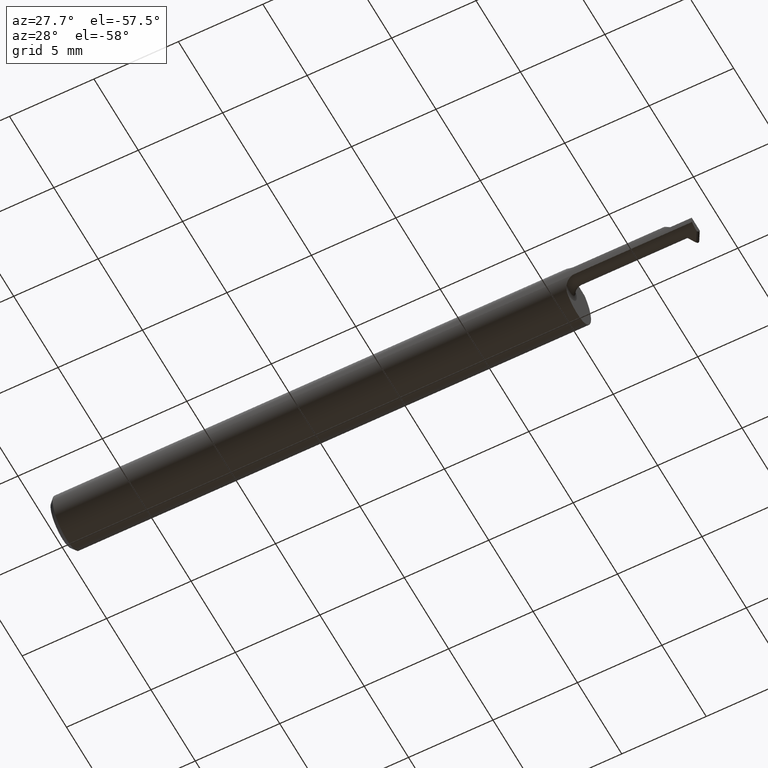
[diagram: clean part render]
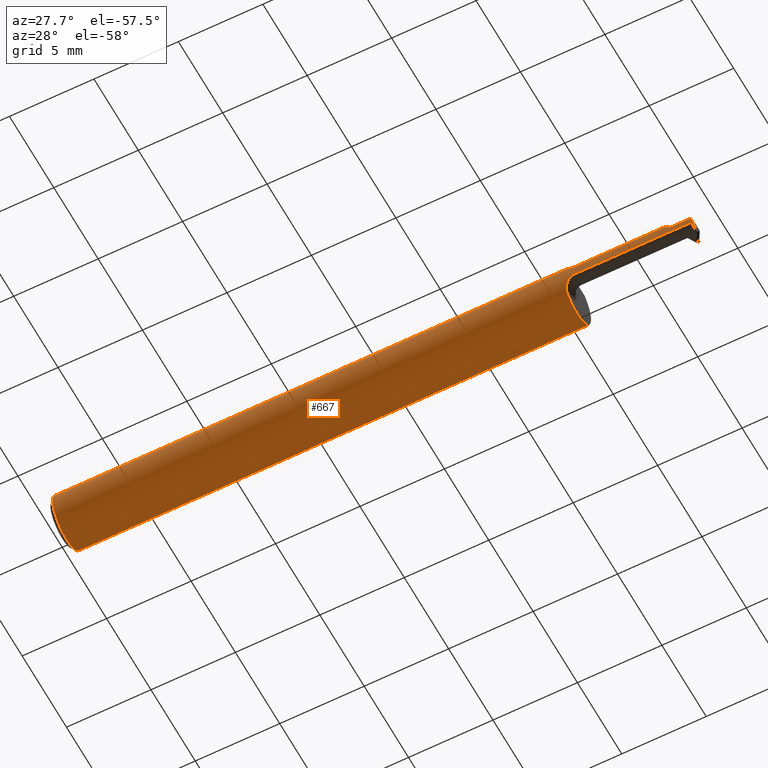
[diagram: same view with one face highlighted and labeled with its STEP entity id]
A machine part, auxiliary view. The second image highlights one B-rep face of the part: STEP entity #667.
In plain terms, the highlighted cylindrical surface (edge-blend (fillet) strip) has radius 1.5837 mm, axis along (-1, -0, -0).
Its self-contained STEP definition (entity closure, byte-faithful):
#2 = ORIENTED_EDGE ( 'NONE', *, *, #334, .T. ) ;
#6 = CARTESIAN_POINT ( 'NONE',  ( 0.000000000000000000, 0.000000000000000000, 0.000000000000000000 ) ) ;
#7 = VERTEX_POINT ( 'NONE', #793 ) ;
#11 = FACE_OUTER_BOUND ( 'NONE', #121, .T. ) ;
#13 = CARTESIAN_POINT ( 'NONE',  ( 1.221292961278814149, -0.06073604143947843731, 0.01409452979925066192 ) ) ;
#18 = CARTESIAN_POINT ( 'NONE',  ( 1.217834430527526601, -0.06037265636804074048, 0.01573558416171080485 ) ) ;
#29 = AXIS2_PLACEMENT_3D ( 'NONE', #241, #682, #107 ) ;
#30 = CARTESIAN_POINT ( 'NONE',  ( 1.500000000000000222, 0.000000000000000000, 0.000000000000000000 ) ) ;
#32 =( BOUNDED_CURVE ( )  B_SPLINE_CURVE ( 3, ( #646, #327, #450, #130 ),
 .UNSPECIFIED., .F., .T. ) 
 B_SPLINE_CURVE_WITH_KNOTS ( ( 4, 4 ),
 ( 4.712388980384689674, 4.940414924607588354 ),
 .UNSPECIFIED. ) 
 CURVE ( )  GEOMETRIC_REPRESENTATION_ITEM ( )  RATIONAL_B_SPLINE_CURVE ( ( 1.000000000000000000, 0.9956717057219215405, 0.9956717057219215405, 1.000000000000000000 ) ) 
 REPRESENTATION_ITEM ( '' )  );
#43 = DIRECTION ( 'NONE',  ( -1.000000000000000000, -0.000000000000000000, -0.000000000000000000 ) ) ;
#44 = VECTOR ( 'NONE', #509, 39.37007874015748143 ) ;
#47 = EDGE_CURVE ( 'NONE', #706, #507, #789, .T. ) ;
#53 = ORIENTED_EDGE ( 'NONE', *, *, #786, .T. ) ;
#58 = CARTESIAN_POINT ( 'NONE',  ( 1.450000000000000178, -0.06235000000000005121, 6.123233995736799470E-18 ) ) ;
#59 = AXIS2_PLACEMENT_3D ( 'NONE', #606, #732, #81 ) ;
#68 = CARTESIAN_POINT ( 'NONE',  ( 1.200000000000000400, -0.04274258451472193188, -0.04539376575039631712 ) ) ;
#69 = ORIENTED_EDGE ( 'NONE', *, *, #428, .F. ) ;
#76 = LINE ( 'NONE', #250, #44 ) ;
#79 = CARTESIAN_POINT ( 'NONE',  ( 1.200908254586501078, -0.05074957136629033166, 0.03693611459846564415 ) ) ;
#80 = EDGE_CURVE ( 'NONE', #776, #817, #675, .T. ) ;
#81 = DIRECTION ( 'NONE',  ( 0.000000000000000000, 0.000000000000000000, -1.000000000000000000 ) ) ;
#91 = CARTESIAN_POINT ( 'NONE',  ( 1.211997782843084126, -0.05910352463981074361, -0.01998087697867563864 ) ) ;
#96 = CARTESIAN_POINT ( 'NONE',  ( 1.200911592396175731, -0.05077305230828149663, -0.03691063460847186090 ) ) ;
#98 = CARTESIAN_POINT ( 'NONE',  ( 0.009999999999999887451, 0.03386738844375224849, 0.05234999999999997294 ) ) ;
#103 = EDGE_CURVE ( 'NONE', #695, #757, #569, .T. ) ;
#104 = DIRECTION ( 'NONE',  ( 0.000000000000000000, 0.000000000000000000, 1.000000000000000000 ) ) ;
#107 = DIRECTION ( 'NONE',  ( 0.000000000000000000, 0.000000000000000000, -1.000000000000000000 ) ) ;
#116 = CARTESIAN_POINT ( 'NONE',  ( 1.200000000000000400, -0.04274258451472193188, 0.04539376575039631712 ) ) ;
#121 = EDGE_LOOP ( 'NONE', ( #464, #53, #559, #2, #471, #69, #794, #639, #733, #668, #688, #475, #340, #427, #754 ) ) ;
#127 = CARTESIAN_POINT ( 'NONE',  ( 0.009999999999999887451, 0.000000000000000000, -0.06235000000000000264 ) ) ;
#130 = CARTESIAN_POINT ( 'NONE',  ( 1.435905470200741219, -0.06073604143947651524, 0.01409452979925868675 ) ) ;
#132 = VERTEX_POINT ( 'NONE', #374 ) ;
#135 = DIRECTION ( 'NONE',  ( -1.000000000000000000, -0.000000000000000000, -0.000000000000000000 ) ) ;
#143 = CARTESIAN_POINT ( 'NONE',  ( 1.200000000000000400, -0.04274258451472193188, -0.04539376575039631712 ) ) ;
#144 = VERTEX_POINT ( 'NONE', #693 ) ;
#147 = CARTESIAN_POINT ( 'NONE',  ( 1.211982382220401888, -0.05909843708157583309, 0.01999602411377916777 ) ) ;
#158 = CARTESIAN_POINT ( 'NONE',  ( 1.200000000000000178, -0.04381837713272508650, -0.04438080381310843120 ) ) ;
#163 = EDGE_CURVE ( 'NONE', #372, #757, #810, .T. ) ;
#168 = CARTESIAN_POINT ( 'NONE',  ( 1.200211781816272305, -0.04585000000000021697, -0.04225281055740977287 ) ) ;
#195 = AXIS2_PLACEMENT_3D ( 'NONE', #30, #43, #104 ) ;
#213 = DIRECTION ( 'NONE',  ( -1.000000000000000000, -0.000000000000000000, -0.000000000000000000 ) ) ;
#221 = DIRECTION ( 'NONE',  ( -1.000000000000000000, -0.000000000000000000, -0.000000000000000000 ) ) ;
#230 = CARTESIAN_POINT ( 'NONE',  ( 1.217858627438156427, -0.06037617897742812711, -0.01572192996331089887 ) ) ;
#231 = DIRECTION ( 'NONE',  ( 1.000000000000000000, 0.000000000000000000, 0.000000000000000000 ) ) ;
#234 = LINE ( 'NONE', #612, #393 ) ;
#240 = B_SPLINE_CURVE_WITH_KNOTS ( 'NONE', 3,
 ( #168, #419, #158, #143 ),
 .UNSPECIFIED., .F., .F.,
 ( 4, 4 ),
 ( 0.001112411154576747234, 0.001224254429530157243 ),
 .UNSPECIFIED. ) ;
#241 = CARTESIAN_POINT ( 'NONE',  ( 1.200000000000000400, 0.000000000000000000, 0.000000000000000000 ) ) ;
#250 = CARTESIAN_POINT ( 'NONE',  ( 0.000000000000000000, -0.03386738844375224849, 0.05234999999999997294 ) ) ;
#306 = CARTESIAN_POINT ( 'NONE',  ( 0.000000000000000000, 0.03386738844375224849, 0.05234999999999997294 ) ) ;
#326 = AXIS2_PLACEMENT_3D ( 'NONE', #690, #231, #684 ) ;
#327 = CARTESIAN_POINT ( 'NONE',  ( 1.445250564478592015, -0.06235000000000000958, 0.004749435521408015490 ) ) ;
#334 = EDGE_CURVE ( 'NONE', #343, #144, #32, .T. ) ;
#338 = CARTESIAN_POINT ( 'NONE',  ( 1.203374710604616427, -0.05454397503010508658, 0.03079799606398875636 ) ) ;
#340 = ORIENTED_EDGE ( 'NONE', *, *, #548, .F. ) ;
#343 = VERTEX_POINT ( 'NONE', #58 ) ;
#351 = CARTESIAN_POINT ( 'NONE',  ( 1.200211781816272305, -0.04585000000000021697, -0.04225281055740977287 ) ) ;
#352 = EDGE_CURVE ( 'NONE', #565, #478, #76, .T. ) ;
#359 = CARTESIAN_POINT ( 'NONE',  ( 1.203333494524814640, -0.05451804717303847941, -0.03085487378060305930 ) ) ;
#363 = CARTESIAN_POINT ( 'NONE',  ( 1.200000000000000400, -0.04274258451472193188, 0.04539376575039631712 ) ) ;
#372 = VERTEX_POINT ( 'NONE', #470 ) ;
#374 = CARTESIAN_POINT ( 'NONE',  ( 1.225000000000000089, -0.06073604143947652217, 0.01409452979925869022 ) ) ;
#379 = DIRECTION ( 'NONE',  ( 0.000000000000000000, 0.000000000000000000, -1.000000000000000000 ) ) ;
#382 = CIRCLE ( 'NONE', #539, 0.06235000000000000264 ) ;
#393 = VECTOR ( 'NONE', #730, 39.37007874015748143 ) ;
#413 = B_SPLINE_CURVE_WITH_KNOTS ( 'NONE', 3,
 ( #719, #79, #338, #595, #147, #18, #13, #598 ),
 .UNSPECIFIED., .F., .F.,
 ( 4, 2, 2, 4 ),
 ( 0.0001160581919393091247, 0.0006692384458867309174, 0.0009458285728604417120, 0.001222418699834152507 ),
 .UNSPECIFIED. ) ;
#419 = CARTESIAN_POINT ( 'NONE',  ( 1.200071037177339983, -0.04485988461807983302, -0.04332721932837746426 ) ) ;
#421 = CARTESIAN_POINT ( 'NONE',  ( 1.225000000000000089, -0.06073604143947652217, -0.01409452979925869022 ) ) ;
#427 = ORIENTED_EDGE ( 'NONE', *, *, #824, .F. ) ;
#428 = EDGE_CURVE ( 'NONE', #817, #132, #413, .T. ) ;
#430 = CARTESIAN_POINT ( 'NONE',  ( 1.200000000000000178, -0.04382395356689964411, 0.04437555306545493822 ) ) ;
#431 = CARTESIAN_POINT ( 'NONE',  ( 1.200211781816272305, -0.04585000000000021697, -0.04225281055740977287 ) ) ;
#450 = CARTESIAN_POINT ( 'NONE',  ( 1.440531964389071051, -0.06180967512810751907, 0.009468035610928925150 ) ) ;
#456 = B_SPLINE_CURVE_WITH_KNOTS ( 'NONE', 3,
 ( #809, #482, #230, #91, #741, #359, #96, #351 ),
 .UNSPECIFIED., .F., .F.,
 ( 4, 2, 2, 4 ),
 ( 1.967541529472493972E-07, 0.0002782503542588971881, 0.0005563039543648472035, 0.001112411154576747234 ),
 .UNSPECIFIED. ) ;
#464 = ORIENTED_EDGE ( 'NONE', *, *, #47, .F. ) ;
#470 = CARTESIAN_POINT ( 'NONE',  ( 1.200000000000000400, 0.03386738844375224849, 0.05234999999999997294 ) ) ;
#471 = ORIENTED_EDGE ( 'NONE', *, *, #771, .F. ) ;
#475 = ORIENTED_EDGE ( 'NONE', *, *, #163, .F. ) ;
#478 = VERTEX_POINT ( 'NONE', #491 ) ;
#482 = CARTESIAN_POINT ( 'NONE',  ( 1.221291015573046979, -0.06073604143947652911, -0.01409452979925869716 ) ) ;
#486 = VECTOR ( 'NONE', #213, 39.37007874015748143 ) ;
#491 = CARTESIAN_POINT ( 'NONE',  ( 1.200000000000000400, -0.03386738844375225543, 0.05234999999999997294 ) ) ;
#492 = VERTEX_POINT ( 'NONE', #431 ) ;
#499 = DIRECTION ( 'NONE',  ( -1.000000000000000000, -0.000000000000000000, -0.000000000000000000 ) ) ;
#507 = VERTEX_POINT ( 'NONE', #421 ) ;
#509 = DIRECTION ( 'NONE',  ( 1.000000000000000000, 0.000000000000000000, 0.000000000000000000 ) ) ;
#514 = DIRECTION ( 'NONE',  ( 0.000000000000000000, 0.000000000000000000, 1.000000000000000000 ) ) ;
#516 = CIRCLE ( 'NONE', #195, 0.06235000000000000264 ) ;
#519 = CYLINDRICAL_SURFACE ( 'NONE', #736, 0.06235000000000000264 ) ;
#539 = AXIS2_PLACEMENT_3D ( 'NONE', #580, #638, #379 ) ;
#544 = CARTESIAN_POINT ( 'NONE',  ( 1.200211781816276302, -0.04585000000000002962, 0.04225281055740549851 ) ) ;
#548 = EDGE_CURVE ( 'NONE', #720, #372, #554, .T. ) ;
#554 = CIRCLE ( 'NONE', #29, 0.06235000000000000264 ) ;
#559 = ORIENTED_EDGE ( 'NONE', *, *, #758, .T. ) ;
#565 = VERTEX_POINT ( 'NONE', #756 ) ;
#569 = CIRCLE ( 'NONE', #326, 0.06235000000000000264 ) ;
#580 = CARTESIAN_POINT ( 'NONE',  ( 1.200000000000000400, 0.000000000000000000, 0.000000000000000000 ) ) ;
#595 = CARTESIAN_POINT ( 'NONE',  ( 1.209555563180715776, -0.05819961569811519381, 0.02256849687092988069 ) ) ;
#598 = CARTESIAN_POINT ( 'NONE',  ( 1.225000000000000089, -0.06073604143947652217, 0.01409452979925869022 ) ) ;
#600 = CARTESIAN_POINT ( 'NONE',  ( 1.348475710773594072, -0.06073604143947650830, -0.01409452979925867808 ) ) ;
#604 = VECTOR ( 'NONE', #221, 39.37007874015748143 ) ;
#606 = CARTESIAN_POINT ( 'NONE',  ( 0.009999999999999887451, 0.000000000000000000, 0.000000000000000000 ) ) ;
#612 = CARTESIAN_POINT ( 'NONE',  ( 1.348475710773594072, -0.06073604143947650830, 0.01409452979925867808 ) ) ;
#624 = CARTESIAN_POINT ( 'NONE',  ( 1.200211781816276302, -0.04585000000000002962, 0.04225281055740549851 ) ) ;
#633 = CARTESIAN_POINT ( 'NONE',  ( 1.500000000000000222, -0.06073604143947641809, -0.01409452979925866940 ) ) ;
#638 = DIRECTION ( 'NONE',  ( 1.000000000000000000, 0.000000000000000000, 0.000000000000000000 ) ) ;
#639 = ORIENTED_EDGE ( 'NONE', *, *, #702, .F. ) ;
#646 = CARTESIAN_POINT ( 'NONE',  ( 1.450000000000000178, -0.06235000000000005121, 6.123233995736799470E-18 ) ) ;
#661 = VECTOR ( 'NONE', #499, 39.37007874015748143 ) ;
#667 = ADVANCED_FACE ( 'NONE', ( #11 ), #519, .T. ) ;
#668 = ORIENTED_EDGE ( 'NONE', *, *, #790, .T. ) ;
#675 = B_SPLINE_CURVE_WITH_KNOTS ( 'NONE', 3,
 ( #116, #430, #750, #624 ),
 .UNSPECIFIED., .F., .F.,
 ( 4, 4 ),
 ( 4.183662842068164932E-06, 0.0001160581919393091247 ),
 .UNSPECIFIED. ) ;
#676 = LINE ( 'NONE', #797, #604 ) ;
#682 = DIRECTION ( 'NONE',  ( 1.000000000000000000, 0.000000000000000000, 0.000000000000000000 ) ) ;
#684 = DIRECTION ( 'NONE',  ( 0.000000000000000000, 0.000000000000000000, -1.000000000000000000 ) ) ;
#687 = CIRCLE ( 'NONE', #59, 0.06235000000000000264 ) ;
#688 = ORIENTED_EDGE ( 'NONE', *, *, #103, .T. ) ;
#690 = CARTESIAN_POINT ( 'NONE',  ( 0.009999999999999887451, 0.000000000000000000, 0.000000000000000000 ) ) ;
#693 = CARTESIAN_POINT ( 'NONE',  ( 1.435905470200741219, -0.06073604143947651524, 0.01409452979925868675 ) ) ;
#695 = VERTEX_POINT ( 'NONE', #127 ) ;
#702 = EDGE_CURVE ( 'NONE', #478, #776, #382, .T. ) ;
#706 = VERTEX_POINT ( 'NONE', #633 ) ;
#719 = CARTESIAN_POINT ( 'NONE',  ( 1.200211781816276302, -0.04585000000000002962, 0.04225281055740549851 ) ) ;
#720 = VERTEX_POINT ( 'NONE', #68 ) ;
#730 = DIRECTION ( 'NONE',  ( 1.000000000000000000, 0.000000000000000000, 0.000000000000000000 ) ) ;
#732 = DIRECTION ( 'NONE',  ( 1.000000000000000000, 0.000000000000000000, 0.000000000000000000 ) ) ;
#733 = ORIENTED_EDGE ( 'NONE', *, *, #352, .F. ) ;
#736 = AXIS2_PLACEMENT_3D ( 'NONE', #6, #135, #514 ) ;
#741 = CARTESIAN_POINT ( 'NONE',  ( 1.209569765537371833, -0.05820878981686529452, -0.02254858840268754785 ) ) ;
#750 = CARTESIAN_POINT ( 'NONE',  ( 1.200070927975883439, -0.04485911640379317000, 0.04332805294452102274 ) ) ;
#754 = ORIENTED_EDGE ( 'NONE', *, *, #787, .F. ) ;
#756 = CARTESIAN_POINT ( 'NONE',  ( 0.009999999999999887451, -0.03386738844375224849, 0.05234999999999997294 ) ) ;
#757 = VERTEX_POINT ( 'NONE', #98 ) ;
#758 = EDGE_CURVE ( 'NONE', #7, #343, #676, .T. ) ;
#771 = EDGE_CURVE ( 'NONE', #132, #144, #234, .T. ) ;
#776 = VERTEX_POINT ( 'NONE', #363 ) ;
#786 = EDGE_CURVE ( 'NONE', #706, #7, #516, .T. ) ;
#787 = EDGE_CURVE ( 'NONE', #507, #492, #456, .T. ) ;
#789 = LINE ( 'NONE', #600, #486 ) ;
#790 = EDGE_CURVE ( 'NONE', #565, #695, #687, .T. ) ;
#793 = CARTESIAN_POINT ( 'NONE',  ( 1.500000000000000222, -0.06235000000000000264, 0.000000000000000000 ) ) ;
#794 = ORIENTED_EDGE ( 'NONE', *, *, #80, .F. ) ;
#797 = CARTESIAN_POINT ( 'NONE',  ( 2.249639673992810223E-32, -0.06234999999999999570, 1.836970198721039302E-16 ) ) ;
#809 = CARTESIAN_POINT ( 'NONE',  ( 1.225000000000000089, -0.06073604143947652217, -0.01409452979925869022 ) ) ;
#810 = LINE ( 'NONE', #306, #661 ) ;
#817 = VERTEX_POINT ( 'NONE', #544 ) ;
#824 = EDGE_CURVE ( 'NONE', #492, #720, #240, .T. ) ;